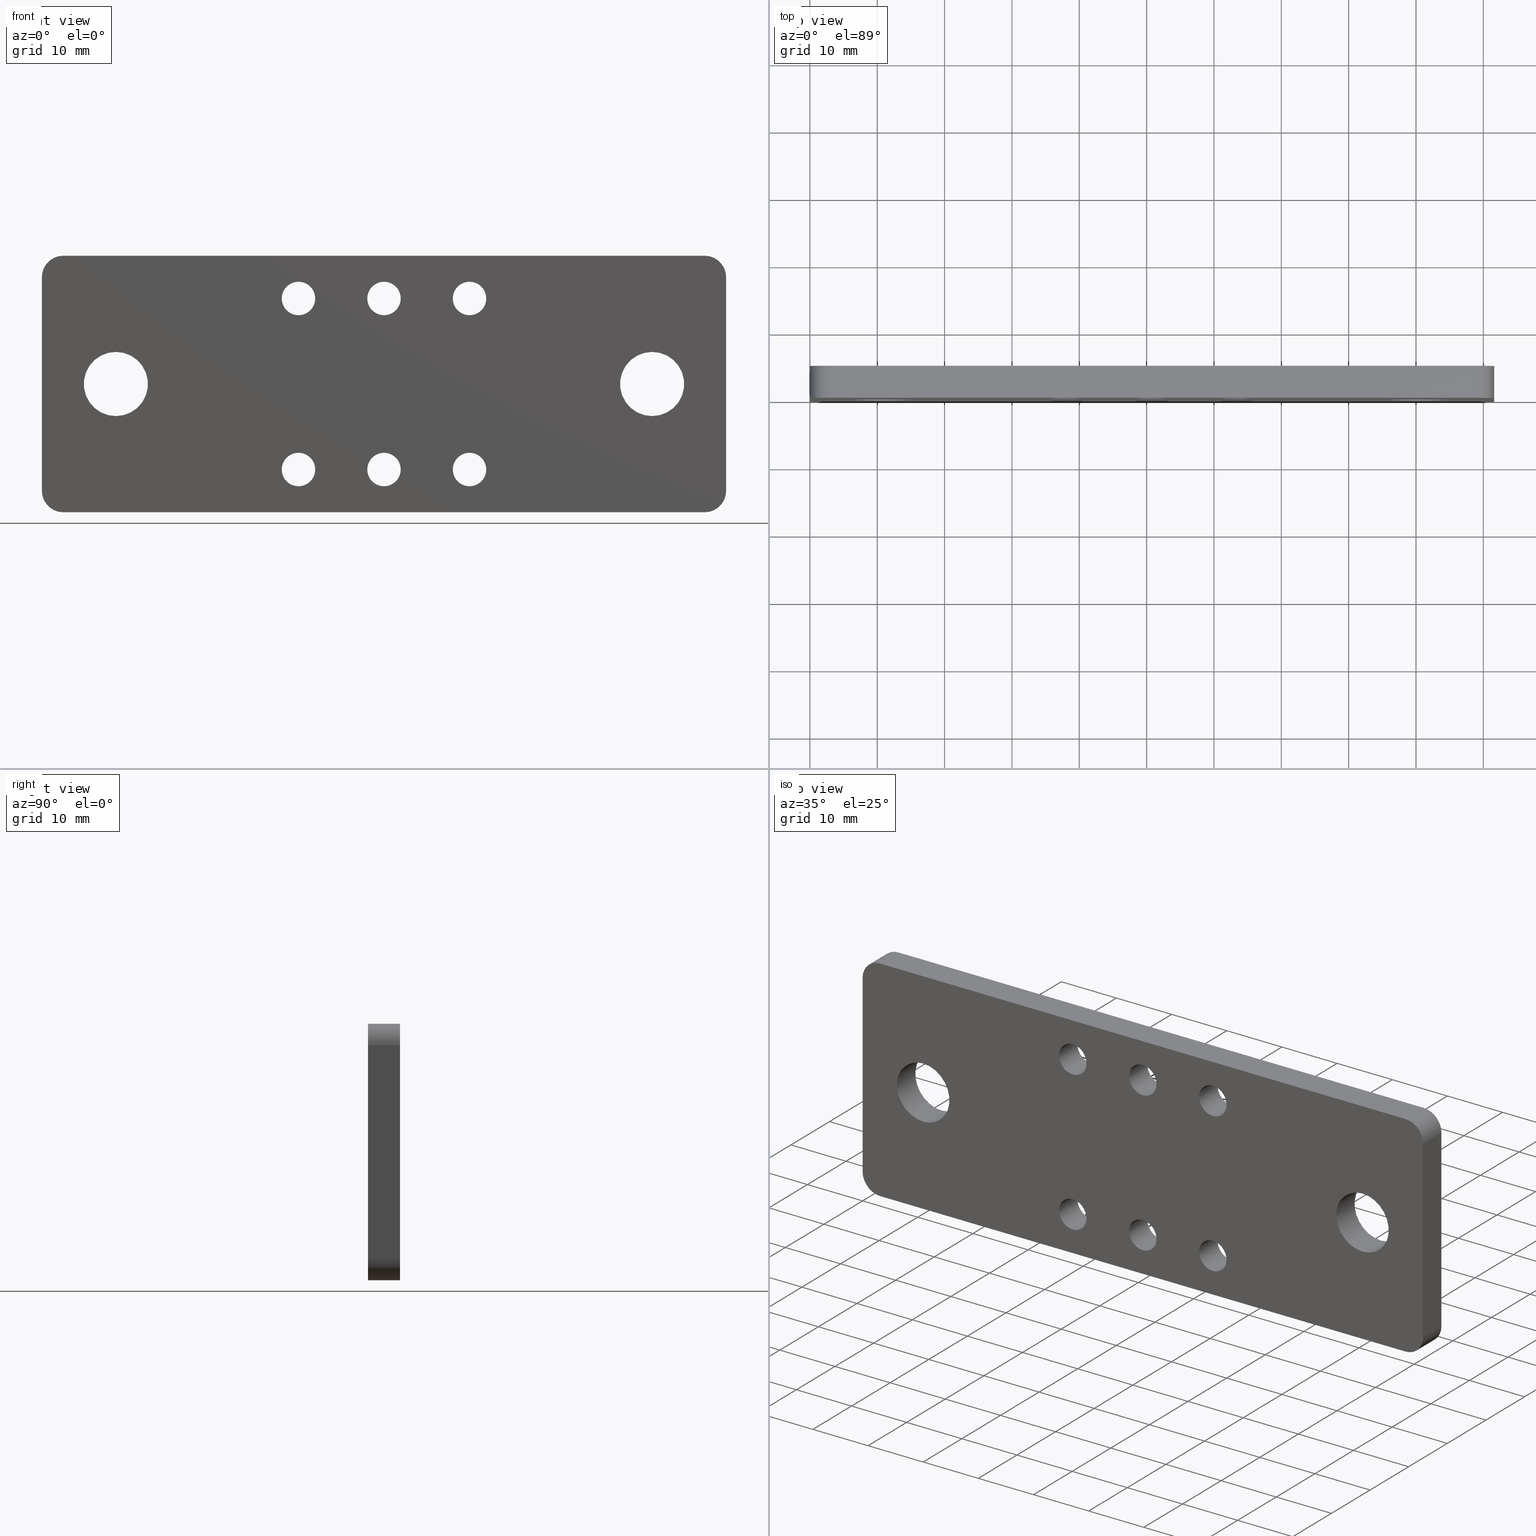
[diagram: canonical four-view strip — front | top / right | iso, engineering-drawing reading convention]
A machine part, canonical four-view strip (front | top / right | iso — engineering-drawing reading convention). The complete STEP part file that produces these views, byte-faithful:
ISO-10303-21;
HEADER;
FILE_DESCRIPTION (( 'STEP AP214' ),
    '1' );
FILE_NAME ('am-3793a 2x1 Elevator Small Bearing Plate R2.STEP',
    '2018-08-07T12:47:33',
    ( '' ),
    ( '' ),
    'SwSTEP 2.0',
    'SolidWorks 2018',
    '' );
FILE_SCHEMA (( 'AUTOMOTIVE_DESIGN' ));
ENDSEC;

DATA;
#1 = FACE_OUTER_BOUND ( 'NONE', #216, .T. ) ;
#2 = ORIENTED_EDGE ( 'NONE', *, *, #118, .T. ) ;
#3 = DIRECTION ( 'NONE',  ( 1.000000000000000000, 0.0000000000000000000, -0.0000000000000000000 ) ) ;
#4 = AXIS2_PLACEMENT_3D ( 'NONE', #260, #274, #79 ) ;
#5 = ORIENTED_EDGE ( 'NONE', *, *, #437, .T. ) ;
#6 = EDGE_LOOP ( 'NONE', ( #46, #532, #390, #134 ) ) ;
#7 = SURFACE_STYLE_FILL_AREA ( #116 ) ;
#8 = FACE_OUTER_BOUND ( 'NONE', #454, .T. ) ;
#9 = AXIS2_PLACEMENT_3D ( 'NONE', #493, #564, #57 ) ;
#10 = AXIS2_PLACEMENT_3D ( 'NONE', #374, #372, #30 ) ;
#11 = AXIS2_PLACEMENT_3D ( 'NONE', #459, #611, #449 ) ;
#12 = EDGE_CURVE ( 'NONE', #347, #202, #545, .T. ) ;
#13 = LENGTH_MEASURE_WITH_UNIT ( LENGTH_MEASURE( 0.02539999999999999897 ), #341 );
#14 = VERTEX_POINT ( 'NONE', #92 ) ;
#15 = EDGE_CURVE ( 'NONE', #223, #586, #240, .T. ) ;
#16 = CARTESIAN_POINT ( 'NONE',  ( -4.582962362058840026E-27, 0.1875000000000000278, -1.500000000000000222 ) ) ;
#17 = ORIENTED_EDGE ( 'NONE', *, *, #112, .F. ) ;
#18 = CIRCLE ( 'NONE', #259, 0.09800000000000015643 ) ;
#19 = EDGE_LOOP ( 'NONE', ( #246 ) ) ;
#20 = DIRECTION ( 'NONE',  ( -0.0000000000000000000, -1.000000000000000000, -0.0000000000000000000 ) ) ;
#21 = EDGE_LOOP ( 'NONE', ( #250, #2, #267, #361, #106, #502, #566, #311 ) ) ;
#22 = AXIS2_PLACEMENT_3D ( 'NONE', #472, #505, #498 ) ;
#23 =( NAMED_UNIT ( * ) SI_UNIT ( $, .STERADIAN. ) SOLID_ANGLE_UNIT ( ) );
#24 = EDGE_LOOP ( 'NONE', ( #213 ) ) ;
#25 = EDGE_CURVE ( 'NONE', #293, #202, #398, .T. ) ;
#26 = VECTOR ( 'NONE', #504, 39.37007874015748143 ) ;
#27 = DIRECTION ( 'NONE',  ( 0.0000000000000000000, 0.0000000000000000000, 1.000000000000000000 ) ) ;
#28 = ORIENTED_EDGE ( 'NONE', *, *, #174, .T. ) ;
#29 = CARTESIAN_POINT ( 'NONE',  ( 0.0000000000000000000, 0.0000000000000000000, 0.0000000000000000000 ) ) ;
#30 = DIRECTION ( 'NONE',  ( 0.0000000000000000000, 0.0000000000000000000, -1.000000000000000000 ) ) ;
#31 = AXIS2_PLACEMENT_3D ( 'NONE', #523, #542, #622 ) ;
#32 = ORIENTED_EDGE ( 'NONE', *, *, #60, .F. ) ;
#33 = ORIENTED_EDGE ( 'NONE', *, *, #194, .T. ) ;
#34 = STYLED_ITEM ( 'NONE', ( #205 ), #76 ) ;
#35 = ORIENTED_EDGE ( 'NONE', *, *, #160, .F. ) ;
#36 = AXIS2_PLACEMENT_3D ( 'NONE', #402, #201, #422 ) ;
#37 = APPLICATION_PROTOCOL_DEFINITION ( 'draft international standard', 'automotive_design', 1998, #325 ) ;
#38 = EDGE_CURVE ( 'NONE', #189, #548, #304, .T. ) ;
#39 = DIRECTION ( 'NONE',  ( 0.0000000000000000000, 0.0000000000000000000, 1.000000000000000000 ) ) ;
#40 = ORIENTED_EDGE ( 'NONE', *, *, #113, .F. ) ;
#41 = CIRCLE ( 'NONE', #54, 0.09799999999999987887 ) ;
#42 = EDGE_LOOP ( 'NONE', ( #284 ) ) ;
#43 = FACE_BOUND ( 'NONE', #64, .T. ) ;
#44 = AXIS2_PLACEMENT_3D ( 'NONE', #613, #20, #587 ) ;
#45 = DIRECTION ( 'NONE',  ( 0.0000000000000000000, 1.000000000000000000, 0.0000000000000000000 ) ) ;
#46 = ORIENTED_EDGE ( 'NONE', *, *, #149, .F. ) ;
#47 = FACE_OUTER_BOUND ( 'NONE', #21, .T. ) ;
#48 = ORIENTED_EDGE ( 'NONE', *, *, #113, .T. ) ;
#49 = CARTESIAN_POINT ( 'NONE',  ( 3.875000000000000000, 0.0000000000000000000, 4.839273588776693858E-16 ) ) ;
#50 = AXIS2_PLACEMENT_3D ( 'NONE', #16, #360, #3 ) ;
#51 = ORIENTED_EDGE ( 'NONE', *, *, #102, .T. ) ;
#52 = COLOUR_RGB ( '',0.8980392156862745390, 0.9176470588235293713, 0.9294117647058823817 ) ;
#53 = CARTESIAN_POINT ( 'NONE',  ( 2.500000000000000000, 0.0000000000000000000, -1.151999999999999913 ) ) ;
#54 = AXIS2_PLACEMENT_3D ( 'NONE', #357, #501, #27 ) ;
#55 = FACE_BOUND ( 'NONE', #67, .T. ) ;
#56 = DIRECTION ( 'NONE',  ( 0.0000000000000000000, 0.0000000000000000000, -1.000000000000000000 ) ) ;
#57 = DIRECTION ( 'NONE',  ( 0.0000000000000000000, 0.0000000000000000000, 1.000000000000000000 ) ) ;
#58 = AXIS2_PLACEMENT_3D ( 'NONE', #538, #45, #518 ) ;
#59 = ORIENTED_EDGE ( 'NONE', *, *, #290, .F. ) ;
#60 = EDGE_CURVE ( 'NONE', #548, #156, #562, .T. ) ;
#61 = CARTESIAN_POINT ( 'NONE',  ( 0.0000000000000000000, 0.0000000000000000000, 0.0000000000000000000 ) ) ;
#62 = CARTESIAN_POINT ( 'NONE',  ( 2.000000000000000000, 0.1875000000000000278, -0.3479999999999999760 ) ) ;
#63 = CIRCLE ( 'NONE', #10, 0.09800000000000015643 ) ;
#64 = EDGE_LOOP ( 'NONE', ( #351 ) ) ;
#65 = AXIS2_PLACEMENT_3D ( 'NONE', #281, #295, #305 ) ;
#66 = ORIENTED_EDGE ( 'NONE', *, *, #60, .T. ) ;
#67 = EDGE_LOOP ( 'NONE', ( #327 ) ) ;
#68 = COLOUR_RGB ( '',0.8980392156862745390, 0.9176470588235293713, 0.9294117647058823817 ) ;
#69 = VECTOR ( 'NONE', #561, 39.37007874015748143 ) ;
#70 = VERTEX_POINT ( 'NONE', #91 ) ;
#71 = CARTESIAN_POINT ( 'NONE',  ( 3.567499999999999449, 0.1875000000000000278, -0.5625000000000001110 ) ) ;
#72 = DIRECTION ( 'NONE',  ( 1.000000000000000000, 0.0000000000000000000, -3.055308241372560376E-27 ) ) ;
#73 = CARTESIAN_POINT ( 'NONE',  ( 0.0000000000000000000, 0.1875000000000000278, 0.0000000000000000000 ) ) ;
#74 = CARTESIAN_POINT ( 'NONE',  ( 3.875000000000000000, 0.0000000000000000000, -1.375000000000000222 ) ) ;
#75 = ORIENTED_EDGE ( 'NONE', *, *, #280, .F. ) ;
#76 = MANIFOLD_SOLID_BREP ( 'Fillet1', #439 ) ;
#77 = EDGE_CURVE ( 'NONE', #314, #293, #404, .T. ) ;
#78 = CARTESIAN_POINT ( 'NONE',  ( 2.000000000000000000, 0.1875000000000000278, -1.152000000000000135 ) ) ;
#79 = DIRECTION ( 'NONE',  ( 0.0000000000000000000, 0.0000000000000000000, -1.000000000000000000 ) ) ;
#80 = DIMENSIONAL_EXPONENTS ( 1.000000000000000000, 0.0000000000000000000, 0.0000000000000000000, 0.0000000000000000000, 0.0000000000000000000, 0.0000000000000000000, 0.0000000000000000000 ) ;
#81 = FACE_OUTER_BOUND ( 'NONE', #253, .T. ) ;
#82 = CIRCLE ( 'NONE', #598, 0.09799999999999987887 ) ;
#83 = AXIS2_PLACEMENT_3D ( 'NONE', #537, #292, #544 ) ;
#84 = MECHANICAL_DESIGN_GEOMETRIC_PRESENTATION_REPRESENTATION (  '', ( #34 ), #413 ) ;
#85 = PRESENTATION_LAYER_ASSIGNMENT (  '', '', ( #34 ) ) ;
#86 = CARTESIAN_POINT ( 'NONE',  ( 0.4325000000000001066, 0.1875000000000000278, -0.5625000000000001110 ) ) ;
#87 = DIRECTION ( 'NONE',  ( 0.0000000000000000000, 0.0000000000000000000, -1.000000000000000000 ) ) ;
#88 = EDGE_LOOP ( 'NONE', ( #51 ) ) ;
#89 = CARTESIAN_POINT ( 'NONE',  ( 1.499999999999999778, 0.0000000000000000000, -0.1519999999999999130 ) ) ;
#90 = LINE ( 'NONE', #323, #614 ) ;
#91 = CARTESIAN_POINT ( 'NONE',  ( 2.500000000000000000, 0.1875000000000000278, -0.3480000000000001981 ) ) ;
#92 = CARTESIAN_POINT ( 'NONE',  ( 0.4325000000000001066, 0.0000000000000000000, -0.5625000000000001110 ) ) ;
#93 = EDGE_CURVE ( 'NONE', #293, #223, #296, .T. ) ;
#94 = CARTESIAN_POINT ( 'NONE',  ( 2.500000000000000000, 0.1875000000000000278, -1.151999999999999913 ) ) ;
#95 = CARTESIAN_POINT ( 'NONE',  ( 3.567499999999999449, 0.0000000000000000000, -0.5625000000000001110 ) ) ;
#96 = EDGE_LOOP ( 'NONE', ( #32, #126, #184, #40 ) ) ;
#97 = CARTESIAN_POINT ( 'NONE',  ( 1.499999999999999778, 0.1875000000000000278, -0.1519999999999999130 ) ) ;
#98 = CARTESIAN_POINT ( 'NONE',  ( 2.500000000000000000, 0.0000000000000000000, -0.3480000000000001981 ) ) ;
#99 = FACE_OUTER_BOUND ( 'NONE', #382, .T. ) ;
#100 = DIRECTION ( 'NONE',  ( 0.0000000000000000000, -1.000000000000000000, 0.0000000000000000000 ) ) ;
#101 = CARTESIAN_POINT ( 'NONE',  ( 0.1250000000000000000, 0.1875000000000000278, -1.375000000000000222 ) ) ;
#102 = EDGE_CURVE ( 'NONE', #469, #469, #63, .T. ) ;
#103 = EDGE_CURVE ( 'NONE', #254, #254, #417, .T. ) ;
#104 = ADVANCED_FACE ( 'NONE', ( #187, #81 ), #278, .F. ) ;
#105 = EDGE_CURVE ( 'NONE', #543, #223, #569, .T. ) ;
#106 = ORIENTED_EDGE ( 'NONE', *, *, #120, .F. ) ;
#107 = VECTOR ( 'NONE', #509, 39.37007874015748143 ) ;
#108 = CARTESIAN_POINT ( 'NONE',  ( 2.000000000000000000, 0.0000000000000000000, -1.152000000000000135 ) ) ;
#109 = VERTEX_POINT ( 'NONE', #98 ) ;
#110 = DIMENSIONAL_EXPONENTS ( 1.000000000000000000, 0.0000000000000000000, 0.0000000000000000000, 0.0000000000000000000, 0.0000000000000000000, 0.0000000000000000000, 0.0000000000000000000 ) ;
#111 = EDGE_CURVE ( 'NONE', #142, #467, #197, .T. ) ;
#112 = EDGE_CURVE ( 'NONE', #362, #362, #18, .T. ) ;
#113 = EDGE_CURVE ( 'NONE', #156, #543, #265, .T. ) ;
#114 = FACE_OUTER_BOUND ( 'NONE', #507, .T. ) ;
#115 = FACE_OUTER_BOUND ( 'NONE', #375, .T. ) ;
#116 = FILL_AREA_STYLE ('',( #179 ) ) ;
#117 = DIMENSIONAL_EXPONENTS ( 1.000000000000000000, 0.0000000000000000000, 0.0000000000000000000, 0.0000000000000000000, 0.0000000000000000000, 0.0000000000000000000, 0.0000000000000000000 ) ;
#118 = EDGE_CURVE ( 'NONE', #543, #196, #152, .T. ) ;
#119 = LINE ( 'NONE', #163, #349 ) ;
#120 = EDGE_CURVE ( 'NONE', #347, #233, #172, .T. ) ;
#121 = AXIS2_PLACEMENT_3D ( 'NONE', #490, #100, #426 ) ;
#122 = ORIENTED_EDGE ( 'NONE', *, *, #332, .T. ) ;
#123 = LINE ( 'NONE', #154, #618 ) ;
#124 =( CONVERSION_BASED_UNIT ( 'INCH', #435 ) LENGTH_UNIT ( ) NAMED_UNIT ( #110 ) );
#125 = DIRECTION ( 'NONE',  ( 0.0000000000000000000, 0.0000000000000000000, 1.000000000000000000 ) ) ;
#126 = ORIENTED_EDGE ( 'NONE', *, *, #263, .F. ) ;
#127 = FACE_OUTER_BOUND ( 'NONE', #408, .T. ) ;
#128 = ORIENTED_EDGE ( 'NONE', *, *, #102, .F. ) ;
#129 =( NAMED_UNIT ( * ) PLANE_ANGLE_UNIT ( ) SI_UNIT ( $, .RADIAN. ) );
#130 = SURFACE_SIDE_STYLE ('',( #7 ) ) ;
#131 = ADVANCED_FACE ( 'NONE', ( #423, #376 ), #328, .F. ) ;
#132 = ORIENTED_EDGE ( 'NONE', *, *, #199, .F. ) ;
#133 = AXIS2_PLACEMENT_3D ( 'NONE', #303, #336, #337 ) ;
#134 = ORIENTED_EDGE ( 'NONE', *, *, #364, .T. ) ;
#135 = SHAPE_DEFINITION_REPRESENTATION ( #345, #231 ) ;
#136 = AXIS2_PLACEMENT_3D ( 'NONE', #557, #373, #589 ) ;
#137 = FACE_OUTER_BOUND ( 'NONE', #151, .T. ) ;
#138 = CARTESIAN_POINT ( 'NONE',  ( 0.4325000000000001066, 0.1875000000000000278, -0.7500000000000001110 ) ) ;
#139 = ADVANCED_FACE ( 'NONE', ( #229 ), #597, .T. ) ;
#140 = AXIS2_PLACEMENT_3D ( 'NONE', #359, #164, #619 ) ;
#141 = SURFACE_STYLE_USAGE ( .BOTH. , #130 ) ;
#142 = VERTEX_POINT ( 'NONE', #494 ) ;
#143 = EDGE_CURVE ( 'NONE', #225, #225, #343, .T. ) ;
#144 = CARTESIAN_POINT ( 'NONE',  ( 0.1250000000000000000, 0.1875000000000000278, -0.1249999999999999584 ) ) ;
#145 = EDGE_LOOP ( 'NONE', ( #176 ) ) ;
#146 = EDGE_CURVE ( 'NONE', #467, #347, #441, .T. ) ;
#147 = AXIS2_PLACEMENT_3D ( 'NONE', #144, #312, #306 ) ;
#148 = APPLICATION_PROTOCOL_DEFINITION ( 'draft international standard', 'automotive_design', 1998, #286 ) ;
#149 = EDGE_CURVE ( 'NONE', #314, #142, #534, .T. ) ;
#150 = EDGE_CURVE ( 'NONE', #70, #70, #499, .T. ) ;
#151 = EDGE_LOOP ( 'NONE', ( #244 ) ) ;
#152 = CIRCLE ( 'NONE', #11, 0.1249999999999999029 ) ;
#153 = EDGE_LOOP ( 'NONE', ( #161 ) ) ;
#154 = CARTESIAN_POINT ( 'NONE',  ( 3.875000000000000000, 0.1875000000000000278, 4.839273588776694844E-16 ) ) ;
#155 = DIRECTION ( 'NONE',  ( 0.0000000000000000000, -1.000000000000000000, 0.0000000000000000000 ) ) ;
#156 = VERTEX_POINT ( 'NONE', #513 ) ;
#157 = CARTESIAN_POINT ( 'NONE',  ( 3.875000000000000000, 0.1875000000000000278, -0.1249999999999995004 ) ) ;
#158 = CARTESIAN_POINT ( 'NONE',  ( 4.000000000000000000, 0.0000000000000000000, -1.375000000000000222 ) ) ;
#159 = CIRCLE ( 'NONE', #9, 0.09800000000000015643 ) ;
#160 = EDGE_CURVE ( 'NONE', #156, #586, #180, .T. ) ;
#161 = ORIENTED_EDGE ( 'NONE', *, *, #168, .F. ) ;
#162 = DIRECTION ( 'NONE',  ( -1.000000000000000000, 0.0000000000000000000, 0.0000000000000000000 ) ) ;
#163 = CARTESIAN_POINT ( 'NONE',  ( 0.1250000000000000000, 0.1875000000000000278, -1.500000000000000222 ) ) ;
#164 = DIRECTION ( 'NONE',  ( 0.0000000000000000000, 1.000000000000000000, 0.0000000000000000000 ) ) ;
#165 = EDGE_CURVE ( 'NONE', #563, #563, #159, .T. ) ;
#166 = DIRECTION ( 'NONE',  ( -3.055308241372560376E-27, 0.0000000000000000000, -1.000000000000000000 ) ) ;
#167 =( NAMED_UNIT ( * ) PLANE_ANGLE_UNIT ( ) SI_UNIT ( $, .RADIAN. ) );
#168 = EDGE_CURVE ( 'NONE', #272, #272, #271, .T. ) ;
#169 = EDGE_LOOP ( 'NONE', ( #623 ) ) ;
#170 = DIRECTION ( 'NONE',  ( 0.0000000000000000000, 0.0000000000000000000, -1.000000000000000000 ) ) ;
#171 = ORIENTED_EDGE ( 'NONE', *, *, #15, .F. ) ;
#172 = LINE ( 'NONE', #440, #487 ) ;
#173 = ORIENTED_EDGE ( 'NONE', *, *, #15, .T. ) ;
#174 = EDGE_CURVE ( 'NONE', #586, #314, #575, .T. ) ;
#175 =( CONVERSION_BASED_UNIT ( 'INCH', #397 ) LENGTH_UNIT ( ) NAMED_UNIT ( #80 ) );
#176 = ORIENTED_EDGE ( 'NONE', *, *, #340, .T. ) ;
#177 = EDGE_LOOP ( 'NONE', ( #406 ) ) ;
#178 = PRODUCT_DEFINITION_CONTEXT ( 'detailed design', #325, 'design' ) ;
#179 = FILL_AREA_STYLE_COLOUR ( '', #68 ) ;
#180 = LINE ( 'NONE', #503, #26 ) ;
#181 = ORIENTED_EDGE ( 'NONE', *, *, #183, .T. ) ;
#182 = FACE_BOUND ( 'NONE', #153, .T. ) ;
#183 = EDGE_CURVE ( 'NONE', #14, #14, #385, .T. ) ;
#184 = ORIENTED_EDGE ( 'NONE', *, *, #118, .F. ) ;
#185 = ORIENTED_EDGE ( 'NONE', *, *, #340, .F. ) ;
#186 = FACE_BOUND ( 'NONE', #595, .T. ) ;
#187 = FACE_OUTER_BOUND ( 'NONE', #169, .T. ) ;
#188 = CARTESIAN_POINT ( 'NONE',  ( 2.000000000000000000, 0.1875000000000000278, -0.2500000000000000555 ) ) ;
#189 = VERTEX_POINT ( 'NONE', #593 ) ;
#190 = PLANE ( 'NONE',  #594 ) ;
#191 = ORIENTED_EDGE ( 'NONE', *, *, #160, .T. ) ;
#192 = VECTOR ( 'NONE', #289, 39.37007874015748143 ) ;
#193 = FACE_BOUND ( 'NONE', #24, .T. ) ;
#194 = EDGE_CURVE ( 'NONE', #473, #196, #285, .T. ) ;
#195 = DIRECTION ( 'NONE',  ( 3.055308241372560376E-27, -0.0000000000000000000, 1.000000000000000000 ) ) ;
#196 = VERTEX_POINT ( 'NONE', #554 ) ;
#197 = CIRCLE ( 'NONE', #429, 0.1250000000000000278 ) ;
#198 = ORIENTED_EDGE ( 'NONE', *, *, #437, .F. ) ;
#199 = EDGE_CURVE ( 'NONE', #189, #473, #522, .T. ) ;
#200 = PRODUCT_CONTEXT ( 'NONE', #286, 'mechanical' ) ;
#201 = DIRECTION ( 'NONE',  ( 0.0000000000000000000, -1.000000000000000000, 0.0000000000000000000 ) ) ;
#202 = VERTEX_POINT ( 'NONE', #49 ) ;
#203 = AXIS2_PLACEMENT_3D ( 'NONE', #458, #463, #237 ) ;
#204 = CARTESIAN_POINT ( 'NONE',  ( 2.500000000000000000, 0.0000000000000000000, -0.2500000000000000555 ) ) ;
#205 = PRESENTATION_STYLE_ASSIGNMENT (( #339 ) ) ;
#206 = CARTESIAN_POINT ( 'NONE',  ( 1.499999999999999778, 0.1875000000000000278, -0.2500000000000000555 ) ) ;
#207 = FACE_BOUND ( 'NONE', #145, .T. ) ;
#208 = CARTESIAN_POINT ( 'NONE',  ( 4.000000000000000000, 0.0000000000000000000, -0.1249999999999995004 ) ) ;
#209 = ADVANCED_FACE ( 'NONE', ( #114 ), #318, .F. ) ;
#210 = DIRECTION ( 'NONE',  ( -0.0000000000000000000, 1.000000000000000000, -0.0000000000000000000 ) ) ;
#211 = EDGE_CURVE ( 'NONE', #476, #476, #41, .T. ) ;
#212 = ADVANCED_FACE ( 'NONE', ( #224, #609 ), #389, .F. ) ;
#213 = ORIENTED_EDGE ( 'NONE', *, *, #294, .F. ) ;
#214 = CIRCLE ( 'NONE', #610, 0.09800000000000015643 ) ;
#215 = CARTESIAN_POINT ( 'NONE',  ( 4.000000000000000000, 0.1875000000000000278, -0.1249999999999995004 ) ) ;
#216 = EDGE_LOOP ( 'NONE', ( #519 ) ) ;
#217 = DIRECTION ( 'NONE',  ( 0.0000000000000000000, 0.0000000000000000000, 1.000000000000000000 ) ) ;
#218 = CARTESIAN_POINT ( 'NONE',  ( 0.1250000000000000000, 0.1875000000000000278, -0.1249999999999999584 ) ) ;
#219 = FACE_OUTER_BOUND ( 'NONE', #396, .T. ) ;
#220 = DIRECTION ( 'NONE',  ( 1.000000000000000000, 0.0000000000000000000, 0.0000000000000000000 ) ) ;
#221 = DIRECTION ( 'NONE',  ( -0.0000000000000000000, -1.000000000000000000, -0.0000000000000000000 ) ) ;
#222 = ORIENTED_EDGE ( 'NONE', *, *, #150, .T. ) ;
#223 = VERTEX_POINT ( 'NONE', #445 ) ;
#224 = FACE_OUTER_BOUND ( 'NONE', #241, .T. ) ;
#225 = VERTEX_POINT ( 'NONE', #86 ) ;
#226 = FACE_OUTER_BOUND ( 'NONE', #96, .T. ) ;
#227 = EDGE_LOOP ( 'NONE', ( #447 ) ) ;
#228 =( LENGTH_UNIT ( ) NAMED_UNIT ( * ) SI_UNIT ( $, .METRE. ) );
#229 = FACE_OUTER_BOUND ( 'NONE', #468, .T. ) ;
#230 = FACE_OUTER_BOUND ( 'NONE', #535, .T. ) ;
#231 = ADVANCED_BREP_SHAPE_REPRESENTATION ( 'am-3793a 2x1 Elevator Small Bearing Plate R2', ( #76, #466 ), #526 ) ;
#232 = ORIENTED_EDGE ( 'NONE', *, *, #38, .T. ) ;
#233 = VERTEX_POINT ( 'NONE', #158 ) ;
#234 = VECTOR ( 'NONE', #601, 39.37007874015748143 ) ;
#235 = CYLINDRICAL_SURFACE ( 'NONE', #568, 0.09799999999999987887 ) ;
#236 = CYLINDRICAL_SURFACE ( 'NONE', #620, 0.1249999999999999029 ) ;
#237 = DIRECTION ( 'NONE',  ( 0.0000000000000000000, 0.0000000000000000000, -1.000000000000000000 ) ) ;
#238 = EDGE_LOOP ( 'NONE', ( #122 ) ) ;
#239 = ADVANCED_FACE ( 'NONE', ( #276, #320, #533, #333, #47, #448, #186, #207, #317 ), #444, .T. ) ;
#240 = LINE ( 'NONE', #277, #192 ) ;
#241 = EDGE_LOOP ( 'NONE', ( #300 ) ) ;
#242 = CYLINDRICAL_SURFACE ( 'NONE', #539, 0.1874999999999999722 ) ;
#243 = CIRCLE ( 'NONE', #592, 0.09800000000000015643 ) ;
#244 = ORIENTED_EDGE ( 'NONE', *, *, #393, .F. ) ;
#245 = AXIS2_PLACEMENT_3D ( 'NONE', #380, #221, #379 ) ;
#246 = ORIENTED_EDGE ( 'NONE', *, *, #143, .F. ) ;
#247 = ADVANCED_FACE ( 'NONE', ( #576, #219 ), #452, .F. ) ;
#248 = FACE_OUTER_BOUND ( 'NONE', #384, .T. ) ;
#249 = AXIS2_PLACEMENT_3D ( 'NONE', #395, #577, #400 ) ;
#250 = ORIENTED_EDGE ( 'NONE', *, *, #105, .F. ) ;
#251 = DIRECTION ( 'NONE',  ( -0.0000000000000000000, -1.000000000000000000, -0.0000000000000000000 ) ) ;
#252 = DIRECTION ( 'NONE',  ( 0.0000000000000000000, 1.000000000000000000, 0.0000000000000000000 ) ) ;
#253 = EDGE_LOOP ( 'NONE', ( #128 ) ) ;
#254 = VERTEX_POINT ( 'NONE', #53 ) ;
#255 = EDGE_LOOP ( 'NONE', ( #269 ) ) ;
#256 = EDGE_CURVE ( 'NONE', #321, #321, #335, .T. ) ;
#257 = ADVANCED_FACE ( 'NONE', ( #226 ), #236, .T. ) ;
#258 = EDGE_LOOP ( 'NONE', ( #222 ) ) ;
#259 = AXIS2_PLACEMENT_3D ( 'NONE', #446, #419, #433 ) ;
#260 = CARTESIAN_POINT ( 'NONE',  ( 2.000000000000000000, 0.0000000000000000000, -0.2500000000000000555 ) ) ;
#261 = VERTEX_POINT ( 'NONE', #273 ) ;
#262 = DIRECTION ( 'NONE',  ( 0.0000000000000000000, 0.0000000000000000000, -1.000000000000000000 ) ) ;
#263 = EDGE_CURVE ( 'NONE', #196, #548, #119, .T. ) ;
#264 = ORIENTED_EDGE ( 'NONE', *, *, #256, .F. ) ;
#265 = LINE ( 'NONE', #415, #510 ) ;
#266 = ORIENTED_EDGE ( 'NONE', *, *, #93, .F. ) ;
#267 = ORIENTED_EDGE ( 'NONE', *, *, #194, .F. ) ;
#268 = AXIS2_PLACEMENT_3D ( 'NONE', #353, #488, #378 ) ;
#269 = ORIENTED_EDGE ( 'NONE', *, *, #150, .F. ) ;
#270 = UNCERTAINTY_MEASURE_WITH_UNIT (LENGTH_MEASURE( 1.000000000000000082E-05 ), #175, 'distance_accuracy_value', 'NONE');
#271 = CIRCLE ( 'NONE', #136, 0.09800000000000015643 ) ;
#272 = VERTEX_POINT ( 'NONE', #94 ) ;
#273 = CARTESIAN_POINT ( 'NONE',  ( 4.000000000000000000, 0.1875000000000000278, -1.375000000000000222 ) ) ;
#274 = DIRECTION ( 'NONE',  ( 0.0000000000000000000, 1.000000000000000000, -0.0000000000000000000 ) ) ;
#275 = EDGE_LOOP ( 'NONE', ( #331, #309, #520, #550 ) ) ;
#276 = FACE_BOUND ( 'NONE', #227, .T. ) ;
#277 = CARTESIAN_POINT ( 'NONE',  ( -3.819135301715699574E-28, 0.1875000000000000278, -0.1249999999999999584 ) ) ;
#278 = CYLINDRICAL_SURFACE ( 'NONE', #245, 0.09800000000000015643 ) ;
#279 = VERTEX_POINT ( 'NONE', #62 ) ;
#280 = EDGE_CURVE ( 'NONE', #233, #261, #90, .T. ) ;
#281 = CARTESIAN_POINT ( 'NONE',  ( 3.875000000000000000, 0.0000000000000000000, -0.1249999999999995004 ) ) ;
#282 = EDGE_CURVE ( 'NONE', #571, #571, #425, .T. ) ;
#283 = ADVANCED_FACE ( 'NONE', ( #386, #288, #525, #43, #182, #399, #546, #55, #193 ), #302, .F. ) ;
#284 = ORIENTED_EDGE ( 'NONE', *, *, #282, .F. ) ;
#285 = LINE ( 'NONE', #616, #432 ) ;
#286 = APPLICATION_CONTEXT ( 'automotive_design' ) ;
#287 = ORIENTED_EDGE ( 'NONE', *, *, #103, .F. ) ;
#288 = FACE_BOUND ( 'NONE', #19, .T. ) ;
#289 = DIRECTION ( 'NONE',  ( -0.0000000000000000000, 1.000000000000000000, -0.0000000000000000000 ) ) ;
#290 = EDGE_CURVE ( 'NONE', #467, #261, #411, .T. ) ;
#291 = ADVANCED_FACE ( 'NONE', ( #230 ), #456, .T. ) ;
#292 = DIRECTION ( 'NONE',  ( 0.0000000000000000000, 1.000000000000000000, -0.0000000000000000000 ) ) ;
#293 = VERTEX_POINT ( 'NONE', #430 ) ;
#294 = EDGE_CURVE ( 'NONE', #418, #418, #214, .T. ) ;
#295 = DIRECTION ( 'NONE',  ( 0.0000000000000000000, -1.000000000000000000, -0.0000000000000000000 ) ) ;
#296 = CIRCLE ( 'NONE', #268, 0.1250000000000000000 ) ;
#297 = ORIENTED_EDGE ( 'NONE', *, *, #38, .F. ) ;
#298 = CARTESIAN_POINT ( 'NONE',  ( 4.000000000000000000, 0.1875000000000000278, 4.995379188414651756E-16 ) ) ;
#299 = FILL_AREA_STYLE_COLOUR ( '', #52 ) ;
#300 = ORIENTED_EDGE ( 'NONE', *, *, #168, .T. ) ;
#301 = ORIENTED_EDGE ( 'NONE', *, *, #105, .T. ) ;
#302 = PLANE ( 'NONE',  #615 ) ;
#303 = CARTESIAN_POINT ( 'NONE',  ( 0.1250000000000000000, 0.1875000000000000278, -1.375000000000000222 ) ) ;
#304 = LINE ( 'NONE', #308, #69 ) ;
#305 = DIRECTION ( 'NONE',  ( 0.0000000000000000000, 0.0000000000000000000, -1.000000000000000000 ) ) ;
#306 = DIRECTION ( 'NONE',  ( 0.0000000000000000000, 0.0000000000000000000, -1.000000000000000000 ) ) ;
#307 = VECTOR ( 'NONE', #621, 39.37007874015748143 ) ;
#308 = CARTESIAN_POINT ( 'NONE',  ( -4.582962362058840026E-27, 0.1875000000000000278, -1.500000000000000222 ) ) ;
#309 = ORIENTED_EDGE ( 'NONE', *, *, #364, .F. ) ;
#310 = VECTOR ( 'NONE', #195, 39.37007874015748143 ) ;
#311 = ORIENTED_EDGE ( 'NONE', *, *, #93, .T. ) ;
#312 = DIRECTION ( 'NONE',  ( -0.0000000000000000000, 1.000000000000000000, 0.0000000000000000000 ) ) ;
#313 = FILL_AREA_STYLE ('',( #299 ) ) ;
#314 = VERTEX_POINT ( 'NONE', #492 ) ;
#315 = DIRECTION ( 'NONE',  ( 0.0000000000000000000, 1.000000000000000000, 0.0000000000000000000 ) ) ;
#316 = VERTEX_POINT ( 'NONE', #95 ) ;
#317 = FACE_BOUND ( 'NONE', #596, .T. ) ;
#318 = PLANE ( 'NONE',  #50 ) ;
#319 = ORIENTED_EDGE ( 'NONE', *, *, #77, .F. ) ;
#320 = FACE_BOUND ( 'NONE', #88, .T. ) ;
#321 = VERTEX_POINT ( 'NONE', #71 ) ;
#322 = SURFACE_SIDE_STYLE ('',( #443 ) ) ;
#323 = CARTESIAN_POINT ( 'NONE',  ( 4.000000000000000000, 0.1875000000000000278, -1.375000000000000222 ) ) ;
#324 = CARTESIAN_POINT ( 'NONE',  ( 0.1249999999999999861, 0.1875000000000000278, 1.561055996379578674E-17 ) ) ;
#325 = APPLICATION_CONTEXT ( 'automotive_design' ) ;
#326 = EDGE_LOOP ( 'NONE', ( #287 ) ) ;
#327 = ORIENTED_EDGE ( 'NONE', *, *, #332, .F. ) ;
#328 = CYLINDRICAL_SURFACE ( 'NONE', #203, 0.09799999999999987887 ) ;
#329 =( NAMED_UNIT ( * ) SI_UNIT ( $, .STERADIAN. ) SOLID_ANGLE_UNIT ( ) );
#330 = ADVANCED_FACE ( 'NONE', ( #344 ), #190, .F. ) ;
#331 = ORIENTED_EDGE ( 'NONE', *, *, #111, .F. ) ;
#332 = EDGE_CURVE ( 'NONE', #279, #279, #82, .T. ) ;
#333 = FACE_BOUND ( 'NONE', #496, .T. ) ;
#334 = CIRCLE ( 'NONE', #570, 0.1874999999999999167 ) ;
#335 = CIRCLE ( 'NONE', #140, 0.1874999999999999167 ) ;
#336 = DIRECTION ( 'NONE',  ( -0.0000000000000000000, 1.000000000000000000, 0.0000000000000000000 ) ) ;
#337 = DIRECTION ( 'NONE',  ( 0.0000000000000000000, 0.0000000000000000000, -1.000000000000000000 ) ) ;
#338 =( NAMED_UNIT ( * ) PLANE_ANGLE_UNIT ( ) SI_UNIT ( $, .RADIAN. ) );
#339 = SURFACE_STYLE_USAGE ( .BOTH. , #322 ) ;
#340 = EDGE_CURVE ( 'NONE', #109, #109, #243, .T. ) ;
#341 =( LENGTH_UNIT ( ) NAMED_UNIT ( * ) SI_UNIT ( $, .METRE. ) );
#342 = ORIENTED_EDGE ( 'NONE', *, *, #590, .F. ) ;
#343 = CIRCLE ( 'NONE', #22, 0.1874999999999999722 ) ;
#344 = FACE_OUTER_BOUND ( 'NONE', #511, .T. ) ;
#345 = PRODUCT_DEFINITION_SHAPE ( 'NONE', 'NONE',  #461 ) ;
#346 = DIRECTION ( 'NONE',  ( 0.0000000000000000000, -1.000000000000000000, 0.0000000000000000000 ) ) ;
#347 = VERTEX_POINT ( 'NONE', #208 ) ;
#348 = CIRCLE ( 'NONE', #578, 0.09799999999999987887 ) ;
#349 = VECTOR ( 'NONE', #407, 39.37007874015748143 ) ;
#350 = DIRECTION ( 'NONE',  ( 0.0000000000000000000, -1.000000000000000000, 0.0000000000000000000 ) ) ;
#351 = ORIENTED_EDGE ( 'NONE', *, *, #211, .F. ) ;
#352 = CIRCLE ( 'NONE', #558, 0.1249999999999999029 ) ;
#353 = CARTESIAN_POINT ( 'NONE',  ( 0.1250000000000000000, 0.0000000000000000000, -0.1249999999999999584 ) ) ;
#354 = FACE_OUTER_BOUND ( 'NONE', #556, .T. ) ;
#355 =( NAMED_UNIT ( * ) SI_UNIT ( $, .STERADIAN. ) SOLID_ANGLE_UNIT ( ) );
#356 = CYLINDRICAL_SURFACE ( 'NONE', #553, 0.09800000000000015643 ) ;
#357 = CARTESIAN_POINT ( 'NONE',  ( 2.000000000000000000, 0.1875000000000000278, -1.250000000000000000 ) ) ;
#358 = EDGE_LOOP ( 'NONE', ( #17 ) ) ;
#359 = CARTESIAN_POINT ( 'NONE',  ( 3.567499999999999449, 0.1875000000000000278, -0.7500000000000001110 ) ) ;
#360 = DIRECTION ( 'NONE',  ( 0.0000000000000000000, 0.0000000000000000000, 1.000000000000000000 ) ) ;
#361 = ORIENTED_EDGE ( 'NONE', *, *, #608, .T. ) ;
#362 = VERTEX_POINT ( 'NONE', #602 ) ;
#363 = ORIENTED_EDGE ( 'NONE', *, *, #165, .T. ) ;
#364 = EDGE_CURVE ( 'NONE', #202, #142, #123, .T. ) ;
#365 = DIRECTION ( 'NONE',  ( 0.0000000000000000000, -1.000000000000000000, 0.0000000000000000000 ) ) ;
#366 = EDGE_LOOP ( 'NONE', ( #232, #66, #191, #28, #394, #431, #420, #371 ) ) ;
#367 = DIRECTION ( 'NONE',  ( 0.0000000000000000000, -1.000000000000000000, -0.0000000000000000000 ) ) ;
#368 = ADVANCED_FACE ( 'NONE', ( #8 ), #508, .F. ) ;
#369 = VECTOR ( 'NONE', #346, 39.37007874015748143 ) ;
#370 = DIRECTION ( 'NONE',  ( -0.0000000000000000000, 1.000000000000000000, 0.0000000000000000000 ) ) ;
#371 = ORIENTED_EDGE ( 'NONE', *, *, #590, .T. ) ;
#372 = DIRECTION ( 'NONE',  ( 0.0000000000000000000, 1.000000000000000000, -0.0000000000000000000 ) ) ;
#373 = DIRECTION ( 'NONE',  ( 0.0000000000000000000, 1.000000000000000000, 0.0000000000000000000 ) ) ;
#374 = CARTESIAN_POINT ( 'NONE',  ( 1.499999999999999778, 0.0000000000000000000, -1.250000000000000000 ) ) ;
#375 = EDGE_LOOP ( 'NONE', ( #489 ) ) ;
#376 = FACE_OUTER_BOUND ( 'NONE', #42, .T. ) ;
#377 = ORIENTED_EDGE ( 'NONE', *, *, #256, .T. ) ;
#378 = DIRECTION ( 'NONE',  ( 0.0000000000000000000, 0.0000000000000000000, -1.000000000000000000 ) ) ;
#379 = DIRECTION ( 'NONE',  ( 0.0000000000000000000, 0.0000000000000000000, -1.000000000000000000 ) ) ;
#380 = CARTESIAN_POINT ( 'NONE',  ( 1.499999999999999778, 0.1875000000000000278, -1.250000000000000000 ) ) ;
#381 = ADVANCED_FACE ( 'NONE', ( #99, #137 ), #235, .F. ) ;
#382 = EDGE_LOOP ( 'NONE', ( #572 ) ) ;
#383 = CARTESIAN_POINT ( 'NONE',  ( 0.0000000000000000000, 0.0000000000000000000, 0.0000000000000000000 ) ) ;
#384 = EDGE_LOOP ( 'NONE', ( #198 ) ) ;
#385 = CIRCLE ( 'NONE', #58, 0.1874999999999999722 ) ;
#386 = FACE_OUTER_BOUND ( 'NONE', #366, .T. ) ;
#387 = ORIENTED_EDGE ( 'NONE', *, *, #199, .T. ) ;
#388 = ADVANCED_FACE ( 'NONE', ( #471 ), #464, .T. ) ;
#389 = CYLINDRICAL_SURFACE ( 'NONE', #44, 0.09800000000000015643 ) ;
#390 = ORIENTED_EDGE ( 'NONE', *, *, #25, .T. ) ;
#391 = DIRECTION ( 'NONE',  ( -1.000000000000000000, -0.0000000000000000000, -0.0000000000000000000 ) ) ;
#392 = DIRECTION ( 'NONE',  ( 0.0000000000000000000, 0.0000000000000000000, -1.000000000000000000 ) ) ;
#393 = EDGE_CURVE ( 'NONE', #424, #424, #348, .T. ) ;
#394 = ORIENTED_EDGE ( 'NONE', *, *, #149, .T. ) ;
#395 = CARTESIAN_POINT ( 'NONE',  ( 2.500000000000000000, 0.0000000000000000000, -1.250000000000000000 ) ) ;
#396 = EDGE_LOOP ( 'NONE', ( #185 ) ) ;
#397 = LENGTH_MEASURE_WITH_UNIT ( LENGTH_MEASURE( 0.02539999999999999897 ), #515 );
#398 = LINE ( 'NONE', #29, #410 ) ;
#399 = FACE_BOUND ( 'NONE', #358, .T. ) ;
#400 = DIRECTION ( 'NONE',  ( 0.0000000000000000000, 0.0000000000000000000, 1.000000000000000000 ) ) ;
#401 = CARTESIAN_POINT ( 'NONE',  ( 2.000000000000000000, 0.1875000000000000278, -1.250000000000000000 ) ) ;
#402 = CARTESIAN_POINT ( 'NONE',  ( 0.0000000000000000000, 0.0000000000000000000, 0.0000000000000000000 ) ) ;
#403 = ORIENTED_EDGE ( 'NONE', *, *, #280, .T. ) ;
#404 = LINE ( 'NONE', #324, #549 ) ;
#405 = CARTESIAN_POINT ( 'NONE',  ( 2.000000000000000000, 0.0000000000000000000, -0.3479999999999999760 ) ) ;
#406 = ORIENTED_EDGE ( 'NONE', *, *, #143, .T. ) ;
#407 = DIRECTION ( 'NONE',  ( -0.0000000000000000000, 1.000000000000000000, -0.0000000000000000000 ) ) ;
#408 = EDGE_LOOP ( 'NONE', ( #583 ) ) ;
#409 = DIRECTION ( 'NONE',  ( 0.0000000000000000000, 0.0000000000000000000, -1.000000000000000000 ) ) ;
#410 = VECTOR ( 'NONE', #599, 39.37007874015748143 ) ;
#411 = LINE ( 'NONE', #298, #307 ) ;
#412 = DIRECTION ( 'NONE',  ( 0.0000000000000000000, 0.0000000000000000000, -1.000000000000000000 ) ) ;
#413 =( GEOMETRIC_REPRESENTATION_CONTEXT ( 3 ) GLOBAL_UNCERTAINTY_ASSIGNED_CONTEXT ( ( #427 ) ) GLOBAL_UNIT_ASSIGNED_CONTEXT ( ( #475, #338, #355 ) ) REPRESENTATION_CONTEXT ( 'NONE', 'WORKASPACE' ) );
#414 = ADVANCED_FACE ( 'NONE', ( #115, #1 ), #356, .F. ) ;
#415 = CARTESIAN_POINT ( 'NONE',  ( -4.201048831887270742E-27, 0.1875000000000000278, -1.375000000000000222 ) ) ;
#416 = ORIENTED_EDGE ( 'NONE', *, *, #608, .F. ) ;
#417 = CIRCLE ( 'NONE', #249, 0.09800000000000015643 ) ;
#418 = VERTEX_POINT ( 'NONE', #97 ) ;
#419 = DIRECTION ( 'NONE',  ( 0.0000000000000000000, 1.000000000000000000, -0.0000000000000000000 ) ) ;
#420 = ORIENTED_EDGE ( 'NONE', *, *, #290, .T. ) ;
#421 = ORIENTED_EDGE ( 'NONE', *, *, #120, .T. ) ;
#422 = DIRECTION ( 'NONE',  ( 0.0000000000000000000, 0.0000000000000000000, -1.000000000000000000 ) ) ;
#423 = FACE_OUTER_BOUND ( 'NONE', #238, .T. ) ;
#424 = VERTEX_POINT ( 'NONE', #108 ) ;
#425 = CIRCLE ( 'NONE', #4, 0.09799999999999987887 ) ;
#426 = DIRECTION ( 'NONE',  ( 0.0000000000000000000, 0.0000000000000000000, -1.000000000000000000 ) ) ;
#427 = UNCERTAINTY_MEASURE_WITH_UNIT (LENGTH_MEASURE( 1.000000000000000082E-05 ), #475, 'distance_accuracy_value', 'NONE');
#428 = CARTESIAN_POINT ( 'NONE',  ( 3.875000000000000000, 0.1875000000000000278, -0.1249999999999995004 ) ) ;
#429 = AXIS2_PLACEMENT_3D ( 'NONE', #428, #370, #409 ) ;
#430 = CARTESIAN_POINT ( 'NONE',  ( 0.1249999999999999861, 0.0000000000000000000, 1.561055996379578366E-17 ) ) ;
#431 = ORIENTED_EDGE ( 'NONE', *, *, #111, .T. ) ;
#432 = VECTOR ( 'NONE', #391, 39.37007874015748143 ) ;
#433 = DIRECTION ( 'NONE',  ( 0.0000000000000000000, 0.0000000000000000000, -1.000000000000000000 ) ) ;
#434 = ADVANCED_FACE ( 'NONE', ( #354, #248 ), #450, .F. ) ;
#435 = LENGTH_MEASURE_WITH_UNIT ( LENGTH_MEASURE( 0.02539999999999999897 ), #228 );
#436 = EDGE_LOOP ( 'NONE', ( #264 ) ) ;
#437 = EDGE_CURVE ( 'NONE', #316, #316, #334, .T. ) ;
#438 = CARTESIAN_POINT ( 'NONE',  ( 0.0000000000000000000, 0.1875000000000000278, 0.0000000000000000000 ) ) ;
#439 = CLOSED_SHELL ( 'NONE', ( #283, #239, #368, #551, #330, #209, #524, #434, #381, #212, #104, #247, #131, #414, #257, #139, #291, #388 ) ) ;
#440 = CARTESIAN_POINT ( 'NONE',  ( 4.000000000000000000, 0.0000000000000000000, 4.995379188414651756E-16 ) ) ;
#441 = LINE ( 'NONE', #462, #369 ) ;
#442 = DIRECTION ( 'NONE',  ( 0.0000000000000000000, 0.0000000000000000000, -1.000000000000000000 ) ) ;
#443 = SURFACE_STYLE_FILL_AREA ( #313 ) ;
#444 = PLANE ( 'NONE',  #36 ) ;
#445 = CARTESIAN_POINT ( 'NONE',  ( -3.819135301715697780E-28, 0.0000000000000000000, -0.1249999999999999306 ) ) ;
#446 = CARTESIAN_POINT ( 'NONE',  ( 1.499999999999999778, 0.1875000000000000278, -1.250000000000000000 ) ) ;
#447 = ORIENTED_EDGE ( 'NONE', *, *, #282, .T. ) ;
#448 = FACE_BOUND ( 'NONE', #617, .T. ) ;
#449 = DIRECTION ( 'NONE',  ( 0.0000000000000000000, 0.0000000000000000000, -1.000000000000000000 ) ) ;
#450 = CYLINDRICAL_SURFACE ( 'NONE', #547, 0.1874999999999999722 ) ;
#451 = DIRECTION ( 'NONE',  ( 0.0000000000000000000, 0.0000000000000000000, -1.000000000000000000 ) ) ;
#452 = CYLINDRICAL_SURFACE ( 'NONE', #31, 0.09800000000000015643 ) ;
#453 = DIRECTION ( 'NONE',  ( 0.0000000000000000000, -1.000000000000000000, 0.0000000000000000000 ) ) ;
#454 = EDGE_LOOP ( 'NONE', ( #35, #48, #301, #173 ) ) ;
#455 = FACE_OUTER_BOUND ( 'NONE', #6, .T. ) ;
#456 = CYLINDRICAL_SURFACE ( 'NONE', #600, 0.1250000000000000000 ) ;
#457 = PRODUCT_RELATED_PRODUCT_CATEGORY ( 'part', '', ( #521 ) ) ;
#458 = CARTESIAN_POINT ( 'NONE',  ( 2.000000000000000000, 0.1875000000000000278, -0.2500000000000000555 ) ) ;
#459 = CARTESIAN_POINT ( 'NONE',  ( 0.1250000000000000000, 0.0000000000000000000, -1.375000000000000222 ) ) ;
#460 = PRODUCT_DEFINITION_FORMATION_WITH_SPECIFIED_SOURCE ( 'ANY', '', #521, .NOT_KNOWN. ) ;
#461 = PRODUCT_DEFINITION ( 'UNKNOWN', '', #460, #178 ) ;
#462 = CARTESIAN_POINT ( 'NONE',  ( 4.000000000000000000, 0.1875000000000000278, -0.1249999999999995004 ) ) ;
#463 = DIRECTION ( 'NONE',  ( -0.0000000000000000000, -1.000000000000000000, -0.0000000000000000000 ) ) ;
#464 = CYLINDRICAL_SURFACE ( 'NONE', #565, 0.1250000000000000278 ) ;
#465 = ORIENTED_EDGE ( 'NONE', *, *, #174, .F. ) ;
#466 = AXIS2_PLACEMENT_3D ( 'NONE', #61, #39, #220 ) ;
#467 = VERTEX_POINT ( 'NONE', #215 ) ;
#468 = EDGE_LOOP ( 'NONE', ( #342, #75, #416, #132 ) ) ;
#469 = VERTEX_POINT ( 'NONE', #603 ) ;
#470 = CARTESIAN_POINT ( 'NONE',  ( 3.567499999999999449, 0.1875000000000000278, -0.7500000000000001110 ) ) ;
#471 = FACE_OUTER_BOUND ( 'NONE', #275, .T. ) ;
#472 = CARTESIAN_POINT ( 'NONE',  ( 0.4325000000000001066, 0.1875000000000000278, -0.7500000000000001110 ) ) ;
#473 = VERTEX_POINT ( 'NONE', #485 ) ;
#474 = CIRCLE ( 'NONE', #527, 0.1249999999999999029 ) ;
#475 =( CONVERSION_BASED_UNIT ( 'INCH', #13 ) LENGTH_UNIT ( ) NAMED_UNIT ( #117 ) );
#476 = VERTEX_POINT ( 'NONE', #78 ) ;
#477 = DIRECTION ( 'NONE',  ( 0.0000000000000000000, 0.0000000000000000000, -1.000000000000000000 ) ) ;
#478 =( GEOMETRIC_REPRESENTATION_CONTEXT ( 3 ) GLOBAL_UNCERTAINTY_ASSIGNED_CONTEXT ( ( #270 ) ) GLOBAL_UNIT_ASSIGNED_CONTEXT ( ( #175, #167, #23 ) ) REPRESENTATION_CONTEXT ( 'NONE', 'WORKASPACE' ) );
#479 = DIRECTION ( 'NONE',  ( 0.0000000000000000000, 1.000000000000000000, 0.0000000000000000000 ) ) ;
#480 = DIRECTION ( 'NONE',  ( 0.0000000000000000000, 0.0000000000000000000, 1.000000000000000000 ) ) ;
#481 = DIRECTION ( 'NONE',  ( -0.0000000000000000000, -1.000000000000000000, -0.0000000000000000000 ) ) ;
#482 = ORIENTED_EDGE ( 'NONE', *, *, #103, .T. ) ;
#483 = CARTESIAN_POINT ( 'NONE',  ( 3.567499999999999449, 0.0000000000000000000, -0.7500000000000001110 ) ) ;
#484 = MECHANICAL_DESIGN_GEOMETRIC_PRESENTATION_REPRESENTATION (  '', ( #514 ), #478 ) ;
#485 = CARTESIAN_POINT ( 'NONE',  ( 3.875000000000000000, 0.0000000000000000000, -1.500000000000000222 ) ) ;
#486 = PRESENTATION_LAYER_ASSIGNMENT (  '', '', ( #514 ) ) ;
#487 = VECTOR ( 'NONE', #442, 39.37007874015748143 ) ;
#488 = DIRECTION ( 'NONE',  ( 0.0000000000000000000, -1.000000000000000000, -0.0000000000000000000 ) ) ;
#489 = ORIENTED_EDGE ( 'NONE', *, *, #294, .T. ) ;
#490 = CARTESIAN_POINT ( 'NONE',  ( 3.875000000000000000, 0.1875000000000000278, -1.375000000000000222 ) ) ;
#491 = DIRECTION ( 'NONE',  ( -0.0000000000000000000, 1.000000000000000000, -0.0000000000000000000 ) ) ;
#492 = CARTESIAN_POINT ( 'NONE',  ( 0.1249999999999999861, 0.1875000000000000278, 1.561055996379578366E-17 ) ) ;
#493 = CARTESIAN_POINT ( 'NONE',  ( 1.499999999999999778, 0.0000000000000000000, -0.2500000000000000555 ) ) ;
#494 = CARTESIAN_POINT ( 'NONE',  ( 3.875000000000000000, 0.1875000000000000278, 4.839273588776693858E-16 ) ) ;
#495 = CARTESIAN_POINT ( 'NONE',  ( 0.0000000000000000000, 0.1875000000000000278, 0.0000000000000000000 ) ) ;
#496 = EDGE_LOOP ( 'NONE', ( #181 ) ) ;
#497 = CARTESIAN_POINT ( 'NONE',  ( 0.0000000000000000000, 0.1875000000000000278, 0.0000000000000000000 ) ) ;
#498 = DIRECTION ( 'NONE',  ( 0.0000000000000000000, 0.0000000000000000000, 1.000000000000000000 ) ) ;
#499 = CIRCLE ( 'NONE', #83, 0.09800000000000015643 ) ;
#500 = DIRECTION ( 'NONE',  ( -0.0000000000000000000, -1.000000000000000000, -0.0000000000000000000 ) ) ;
#501 = DIRECTION ( 'NONE',  ( 0.0000000000000000000, 1.000000000000000000, 0.0000000000000000000 ) ) ;
#502 = ORIENTED_EDGE ( 'NONE', *, *, #12, .T. ) ;
#503 = CARTESIAN_POINT ( 'NONE',  ( 0.0000000000000000000, 0.1875000000000000278, 0.0000000000000000000 ) ) ;
#504 = DIRECTION ( 'NONE',  ( 3.055308241372560376E-27, -0.0000000000000000000, 1.000000000000000000 ) ) ;
#505 = DIRECTION ( 'NONE',  ( 0.0000000000000000000, 1.000000000000000000, 0.0000000000000000000 ) ) ;
#506 = DIRECTION ( 'NONE',  ( 0.0000000000000000000, 0.0000000000000000000, -1.000000000000000000 ) ) ;
#507 = EDGE_LOOP ( 'NONE', ( #33, #606, #297, #387 ) ) ;
#508 = PLANE ( 'NONE',  #574 ) ;
#509 = DIRECTION ( 'NONE',  ( 1.000000000000000000, 0.0000000000000000000, 1.248844797103662939E-16 ) ) ;
#510 = VECTOR ( 'NONE', #453, 39.37007874015748143 ) ;
#511 = EDGE_LOOP ( 'NONE', ( #421, #403, #59, #530 ) ) ;
#512 = CARTESIAN_POINT ( 'NONE',  ( 1.499999999999999778, 0.1875000000000000278, -0.2500000000000000555 ) ) ;
#513 = CARTESIAN_POINT ( 'NONE',  ( -4.201048831887269307E-27, 0.1875000000000000278, -1.374999999999999778 ) ) ;
#514 = STYLED_ITEM ( 'NONE', ( #560 ), #231 ) ;
#515 =( LENGTH_UNIT ( ) NAMED_UNIT ( * ) SI_UNIT ( $, .METRE. ) );
#516 = DIRECTION ( 'NONE',  ( 0.0000000000000000000, 1.000000000000000000, -0.0000000000000000000 ) ) ;
#517 = DIRECTION ( 'NONE',  ( 0.0000000000000000000, -1.000000000000000000, 0.0000000000000000000 ) ) ;
#518 = DIRECTION ( 'NONE',  ( 0.0000000000000000000, 0.0000000000000000000, 1.000000000000000000 ) ) ;
#519 = ORIENTED_EDGE ( 'NONE', *, *, #165, .F. ) ;
#520 = ORIENTED_EDGE ( 'NONE', *, *, #12, .F. ) ;
#521 = PRODUCT ( 'am-3793a 2x1 Elevator Small Bearing Plate R2', 'am-3793a 2x1 Elevator Small Bearing Plate R2', '', ( #200 ) ) ;
#522 = LINE ( 'NONE', #536, #234 ) ;
#523 = CARTESIAN_POINT ( 'NONE',  ( 2.500000000000000000, 0.1875000000000000278, -0.2500000000000000555 ) ) ;
#524 = ADVANCED_FACE ( 'NONE', ( #612, #127 ), #242, .F. ) ;
#525 = FACE_BOUND ( 'NONE', #436, .T. ) ;
#526 =( GEOMETRIC_REPRESENTATION_CONTEXT ( 3 ) GLOBAL_UNCERTAINTY_ASSIGNED_CONTEXT ( ( #552 ) ) GLOBAL_UNIT_ASSIGNED_CONTEXT ( ( #124, #129, #329 ) ) REPRESENTATION_CONTEXT ( 'NONE', 'WORKASPACE' ) );
#527 = AXIS2_PLACEMENT_3D ( 'NONE', #74, #367, #87 ) ;
#528 = AXIS2_PLACEMENT_3D ( 'NONE', #497, #591, #607 ) ;
#529 = DIRECTION ( 'NONE',  ( 0.0000000000000000000, 0.0000000000000000000, -1.000000000000000000 ) ) ;
#530 = ORIENTED_EDGE ( 'NONE', *, *, #146, .T. ) ;
#531 = DIRECTION ( 'NONE',  ( 0.0000000000000000000, -1.000000000000000000, 0.0000000000000000000 ) ) ;
#532 = ORIENTED_EDGE ( 'NONE', *, *, #77, .T. ) ;
#533 = FACE_BOUND ( 'NONE', #559, .T. ) ;
#534 = LINE ( 'NONE', #495, #107 ) ;
#535 = EDGE_LOOP ( 'NONE', ( #465, #171, #266, #319 ) ) ;
#536 = CARTESIAN_POINT ( 'NONE',  ( 3.875000000000000000, 0.1875000000000000278, -1.500000000000000222 ) ) ;
#537 = CARTESIAN_POINT ( 'NONE',  ( 2.500000000000000000, 0.1875000000000000278, -0.2500000000000000555 ) ) ;
#538 = CARTESIAN_POINT ( 'NONE',  ( 0.4325000000000001066, 0.0000000000000000000, -0.7500000000000001110 ) ) ;
#539 = AXIS2_PLACEMENT_3D ( 'NONE', #138, #500, #262 ) ;
#540 = CARTESIAN_POINT ( 'NONE',  ( 2.000000000000000000, 0.0000000000000000000, -1.250000000000000000 ) ) ;
#541 = DIRECTION ( 'NONE',  ( -0.0000000000000000000, -1.000000000000000000, -0.0000000000000000000 ) ) ;
#542 = DIRECTION ( 'NONE',  ( -0.0000000000000000000, -1.000000000000000000, -0.0000000000000000000 ) ) ;
#543 = VERTEX_POINT ( 'NONE', #584 ) ;
#544 = DIRECTION ( 'NONE',  ( 0.0000000000000000000, 0.0000000000000000000, -1.000000000000000000 ) ) ;
#545 = CIRCLE ( 'NONE', #65, 0.1250000000000000278 ) ;
#546 = FACE_BOUND ( 'NONE', #255, .T. ) ;
#547 = AXIS2_PLACEMENT_3D ( 'NONE', #470, #541, #506 ) ;
#548 = VERTEX_POINT ( 'NONE', #585 ) ;
#549 = VECTOR ( 'NONE', #350, 39.37007874015748143 ) ;
#550 = ORIENTED_EDGE ( 'NONE', *, *, #146, .F. ) ;
#551 = ADVANCED_FACE ( 'NONE', ( #455 ), #582, .F. ) ;
#552 = UNCERTAINTY_MEASURE_WITH_UNIT (LENGTH_MEASURE( 1.000000000000000082E-05 ), #124, 'distance_accuracy_value', 'NONE');
#553 = AXIS2_PLACEMENT_3D ( 'NONE', #512, #251, #529 ) ;
#554 = CARTESIAN_POINT ( 'NONE',  ( 0.1250000000000000000, 0.0000000000000000000, -1.500000000000000222 ) ) ;
#555 = DIRECTION ( 'NONE',  ( 0.0000000000000000000, 0.0000000000000000000, 1.000000000000000000 ) ) ;
#556 = EDGE_LOOP ( 'NONE', ( #377 ) ) ;
#557 = CARTESIAN_POINT ( 'NONE',  ( 2.500000000000000000, 0.1875000000000000278, -1.250000000000000000 ) ) ;
#558 = AXIS2_PLACEMENT_3D ( 'NONE', #573, #580, #579 ) ;
#559 = EDGE_LOOP ( 'NONE', ( #567 ) ) ;
#560 = PRESENTATION_STYLE_ASSIGNMENT (( #141 ) ) ;
#561 = DIRECTION ( 'NONE',  ( -1.000000000000000000, -0.0000000000000000000, -0.0000000000000000000 ) ) ;
#562 = CIRCLE ( 'NONE', #133, 0.1249999999999999029 ) ;
#563 = VERTEX_POINT ( 'NONE', #89 ) ;
#564 = DIRECTION ( 'NONE',  ( 0.0000000000000000000, 1.000000000000000000, 0.0000000000000000000 ) ) ;
#565 = AXIS2_PLACEMENT_3D ( 'NONE', #157, #531, #451 ) ;
#566 = ORIENTED_EDGE ( 'NONE', *, *, #25, .F. ) ;
#567 = ORIENTED_EDGE ( 'NONE', *, *, #393, .T. ) ;
#568 = AXIS2_PLACEMENT_3D ( 'NONE', #401, #481, #477 ) ;
#569 = LINE ( 'NONE', #383, #310 ) ;
#570 = AXIS2_PLACEMENT_3D ( 'NONE', #483, #479, #480 ) ;
#571 = VERTEX_POINT ( 'NONE', #405 ) ;
#572 = ORIENTED_EDGE ( 'NONE', *, *, #211, .T. ) ;
#573 = CARTESIAN_POINT ( 'NONE',  ( 3.875000000000000000, 0.1875000000000000278, -1.375000000000000222 ) ) ;
#574 = AXIS2_PLACEMENT_3D ( 'NONE', #73, #72, #166 ) ;
#575 = CIRCLE ( 'NONE', #147, 0.1250000000000000000 ) ;
#576 = FACE_OUTER_BOUND ( 'NONE', #258, .T. ) ;
#577 = DIRECTION ( 'NONE',  ( 0.0000000000000000000, 1.000000000000000000, 0.0000000000000000000 ) ) ;
#578 = AXIS2_PLACEMENT_3D ( 'NONE', #540, #252, #217 ) ;
#579 = DIRECTION ( 'NONE',  ( 0.0000000000000000000, 0.0000000000000000000, -1.000000000000000000 ) ) ;
#580 = DIRECTION ( 'NONE',  ( -0.0000000000000000000, 1.000000000000000000, 0.0000000000000000000 ) ) ;
#581 = CARTESIAN_POINT ( 'NONE',  ( 4.000000000000000000, 0.1875000000000000278, 4.995379188414651756E-16 ) ) ;
#582 = PLANE ( 'NONE',  #528 ) ;
#583 = ORIENTED_EDGE ( 'NONE', *, *, #183, .F. ) ;
#584 = CARTESIAN_POINT ( 'NONE',  ( -4.201048831887269307E-27, 0.0000000000000000000, -1.374999999999999778 ) ) ;
#585 = CARTESIAN_POINT ( 'NONE',  ( 0.1250000000000000000, 0.1875000000000000278, -1.500000000000000222 ) ) ;
#586 = VERTEX_POINT ( 'NONE', #604 ) ;
#587 = DIRECTION ( 'NONE',  ( 0.0000000000000000000, 0.0000000000000000000, -1.000000000000000000 ) ) ;
#588 = DIRECTION ( 'NONE',  ( 0.0000000000000000000, 0.0000000000000000000, -1.000000000000000000 ) ) ;
#589 = DIRECTION ( 'NONE',  ( 0.0000000000000000000, 0.0000000000000000000, 1.000000000000000000 ) ) ;
#590 = EDGE_CURVE ( 'NONE', #261, #189, #352, .T. ) ;
#591 = DIRECTION ( 'NONE',  ( 1.248844797103663186E-16, 0.0000000000000000000, -1.000000000000000000 ) ) ;
#592 = AXIS2_PLACEMENT_3D ( 'NONE', #204, #516, #588 ) ;
#593 = CARTESIAN_POINT ( 'NONE',  ( 3.875000000000000000, 0.1875000000000000278, -1.500000000000000222 ) ) ;
#594 = AXIS2_PLACEMENT_3D ( 'NONE', #581, #162, #555 ) ;
#595 = EDGE_LOOP ( 'NONE', ( #482 ) ) ;
#596 = EDGE_LOOP ( 'NONE', ( #363 ) ) ;
#597 = CYLINDRICAL_SURFACE ( 'NONE', #121, 0.1249999999999999029 ) ;
#598 = AXIS2_PLACEMENT_3D ( 'NONE', #188, #605, #170 ) ;
#599 = DIRECTION ( 'NONE',  ( 1.000000000000000000, 0.0000000000000000000, 1.248844797103662939E-16 ) ) ;
#600 = AXIS2_PLACEMENT_3D ( 'NONE', #218, #365, #56 ) ;
#601 = DIRECTION ( 'NONE',  ( 0.0000000000000000000, -1.000000000000000000, 0.0000000000000000000 ) ) ;
#602 = CARTESIAN_POINT ( 'NONE',  ( 1.499999999999999778, 0.1875000000000000278, -1.348000000000000309 ) ) ;
#603 = CARTESIAN_POINT ( 'NONE',  ( 1.499999999999999778, 0.0000000000000000000, -1.348000000000000309 ) ) ;
#604 = CARTESIAN_POINT ( 'NONE',  ( -3.819135301715697780E-28, 0.1875000000000000278, -0.1249999999999999306 ) ) ;
#605 = DIRECTION ( 'NONE',  ( 0.0000000000000000000, 1.000000000000000000, -0.0000000000000000000 ) ) ;
#606 = ORIENTED_EDGE ( 'NONE', *, *, #263, .T. ) ;
#607 = DIRECTION ( 'NONE',  ( -1.000000000000000000, 0.0000000000000000000, -1.248844797103663186E-16 ) ) ;
#608 = EDGE_CURVE ( 'NONE', #473, #233, #474, .T. ) ;
#609 = FACE_OUTER_BOUND ( 'NONE', #326, .T. ) ;
#610 = AXIS2_PLACEMENT_3D ( 'NONE', #206, #315, #125 ) ;
#611 = DIRECTION ( 'NONE',  ( 0.0000000000000000000, -1.000000000000000000, -0.0000000000000000000 ) ) ;
#612 = FACE_OUTER_BOUND ( 'NONE', #177, .T. ) ;
#613 = CARTESIAN_POINT ( 'NONE',  ( 2.500000000000000000, 0.1875000000000000278, -1.250000000000000000 ) ) ;
#614 = VECTOR ( 'NONE', #491, 39.37007874015748143 ) ;
#615 = AXIS2_PLACEMENT_3D ( 'NONE', #438, #155, #392 ) ;
#616 = CARTESIAN_POINT ( 'NONE',  ( -4.582962362058840026E-27, 0.0000000000000000000, -1.500000000000000222 ) ) ;
#617 = EDGE_LOOP ( 'NONE', ( #5 ) ) ;
#618 = VECTOR ( 'NONE', #210, 39.37007874015748143 ) ;
#619 = DIRECTION ( 'NONE',  ( 0.0000000000000000000, 0.0000000000000000000, 1.000000000000000000 ) ) ;
#620 = AXIS2_PLACEMENT_3D ( 'NONE', #101, #517, #412 ) ;
#621 = DIRECTION ( 'NONE',  ( 0.0000000000000000000, 0.0000000000000000000, -1.000000000000000000 ) ) ;
#622 = DIRECTION ( 'NONE',  ( 0.0000000000000000000, 0.0000000000000000000, -1.000000000000000000 ) ) ;
#623 = ORIENTED_EDGE ( 'NONE', *, *, #112, .T. ) ;
ENDSEC;
END-ISO-10303-21;
